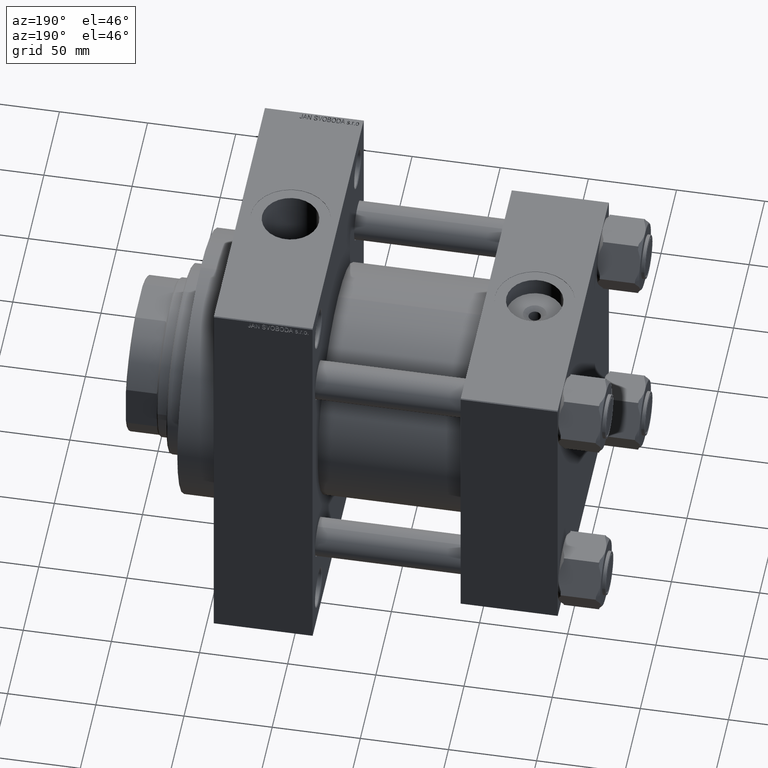
[diagram: clean part render]
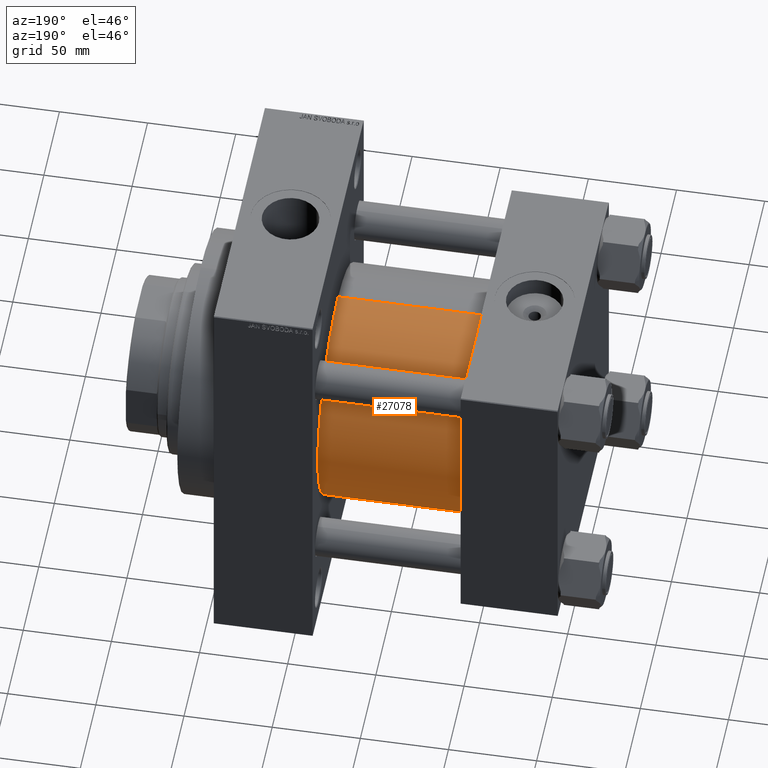
[diagram: same view with one face highlighted and labeled with its STEP entity id]
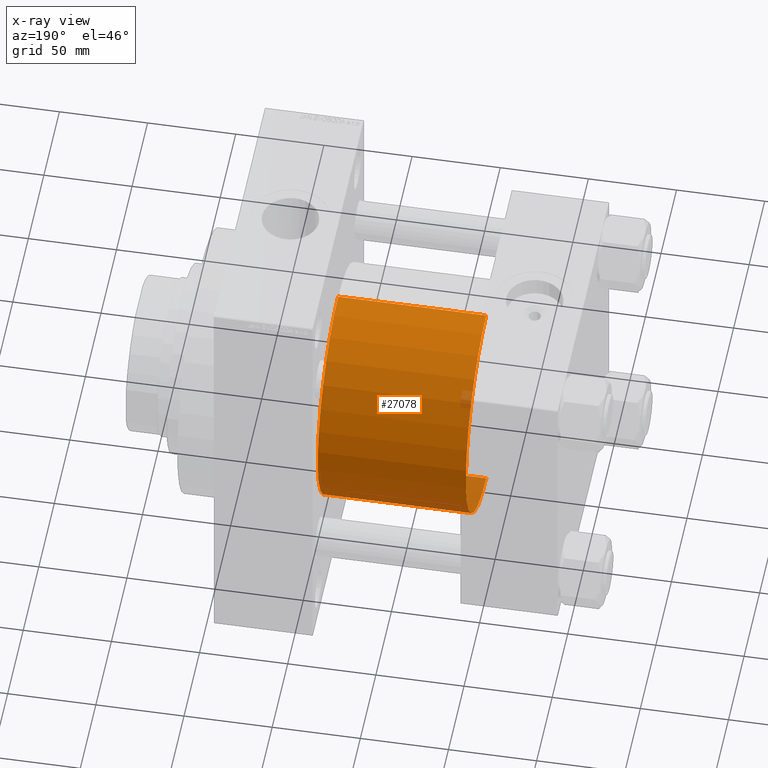
[diagram: x-ray of the same camera — body ghosted, the highlighted face saturated]
A machine part, auxiliary view. The second image highlights one B-rep face of the part: STEP entity #27078.
The next image is the same camera in x-ray: the body ghosted, the highlighted face saturated — about 2% of this face is hidden behind the body in this view.
In plain terms, the highlighted cylindrical surface (partial cylindrical patch) has radius 65.5 mm, axis along (-1, -0, -0).
Its self-contained STEP definition (entity closure, byte-faithful):
#568 = VERTEX_POINT ( 'NONE', #44202 ) ;
#1811 = CARTESIAN_POINT ( 'NONE',  ( 54.99999999999999289, -2.602085213965210642E-15, 65.50000000000001421 ) ) ;
#1856 = LINE ( 'NONE', #35088, #41177 ) ;
#2702 = DIRECTION ( 'NONE',  ( 1.000000000000000000, 0.000000000000000000, 0.000000000000000000 ) ) ;
#3631 = VERTEX_POINT ( 'NONE', #26860 ) ;
#3722 = EDGE_CURVE ( 'NONE', #568, #12271, #1856, .T. ) ;
#6752 = CARTESIAN_POINT ( 'NONE',  ( 54.99999999999999289, -2.602085213965210642E-15, 0.000000000000000000 ) ) ;
#6961 = EDGE_CURVE ( 'NONE', #3631, #568, #15627, .T. ) ;
#8444 = AXIS2_PLACEMENT_3D ( 'NONE', #38062, #34433, #15997 ) ;
#10829 = ORIENTED_EDGE ( 'NONE', *, *, #6961, .F. ) ;
#12271 = VERTEX_POINT ( 'NONE', #1811 ) ;
#13701 = ORIENTED_EDGE ( 'NONE', *, *, #16778, .T. ) ;
#15627 = CIRCLE ( 'NONE', #46590, 65.50000000000001421 ) ;
#15997 = DIRECTION ( 'NONE',  ( 0.000000000000000000, 0.000000000000000000, 1.000000000000000000 ) ) ;
#16778 = EDGE_CURVE ( 'NONE', #3631, #17971, #20603, .T. ) ;
#16960 = FACE_OUTER_BOUND ( 'NONE', #27077, .T. ) ;
#17971 = VERTEX_POINT ( 'NONE', #34443 ) ;
#20348 = AXIS2_PLACEMENT_3D ( 'NONE', #6752, #21561, #36343 ) ;
#20603 = LINE ( 'NONE', #28113, #42976 ) ;
#21561 = DIRECTION ( 'NONE',  ( 1.000000000000000000, -0.000000000000000000, -0.000000000000000000 ) ) ;
#23282 = CYLINDRICAL_SURFACE ( 'NONE', #8444, 65.50000000000001421 ) ;
#23433 = CIRCLE ( 'NONE', #20348, 65.50000000000001421 ) ;
#25503 = CARTESIAN_POINT ( 'NONE',  ( 139.0000000000000000, -2.602085213965210642E-15, 0.000000000000000000 ) ) ;
#26860 = CARTESIAN_POINT ( 'NONE',  ( 139.0000000000000000, 5.419351320449953395E-15, -65.50000000000001421 ) ) ;
#27077 = EDGE_LOOP ( 'NONE', ( #10829, #13701, #42275, #29985 ) ) ;
#27078 = ADVANCED_FACE ( 'NONE', ( #16960 ), #23282, .T. ) ;
#28113 = CARTESIAN_POINT ( 'NONE',  ( 139.0000000000000000, 5.419351320449953395E-15, -65.50000000000001421 ) ) ;
#29985 = ORIENTED_EDGE ( 'NONE', *, *, #3722, .F. ) ;
#34433 = DIRECTION ( 'NONE',  ( -1.000000000000000000, -0.000000000000000000, -0.000000000000000000 ) ) ;
#34443 = CARTESIAN_POINT ( 'NONE',  ( 54.99999999999999289, 5.419351320449953395E-15, -65.50000000000001421 ) ) ;
#35088 = CARTESIAN_POINT ( 'NONE',  ( 139.0000000000000000, -2.602085213965210642E-15, 65.50000000000001421 ) ) ;
#36343 = DIRECTION ( 'NONE',  ( 0.000000000000000000, 0.000000000000000000, 1.000000000000000000 ) ) ;
#38062 = CARTESIAN_POINT ( 'NONE',  ( 139.0000000000000000, -2.602085213965210642E-15, 0.000000000000000000 ) ) ;
#41177 = VECTOR ( 'NONE', #46718, 1000.000000000000000 ) ;
#42219 = EDGE_CURVE ( 'NONE', #17971, #12271, #23433, .T. ) ;
#42275 = ORIENTED_EDGE ( 'NONE', *, *, #42219, .T. ) ;
#42886 = DIRECTION ( 'NONE',  ( -1.000000000000000000, -0.000000000000000000, -0.000000000000000000 ) ) ;
#42976 = VECTOR ( 'NONE', #42886, 1000.000000000000000 ) ;
#44202 = CARTESIAN_POINT ( 'NONE',  ( 139.0000000000000000, -2.602085213965210642E-15, 65.50000000000001421 ) ) ;
#46590 = AXIS2_PLACEMENT_3D ( 'NONE', #25503, #2702, #47080 ) ;
#46718 = DIRECTION ( 'NONE',  ( -1.000000000000000000, -0.000000000000000000, -0.000000000000000000 ) ) ;
#47080 = DIRECTION ( 'NONE',  ( 0.000000000000000000, 0.000000000000000000, -1.000000000000000000 ) ) ;